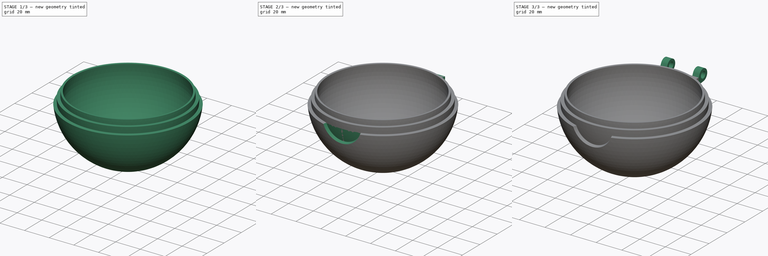
[diagram: build sequence overview — one tinted view per stage of 3, left to right]
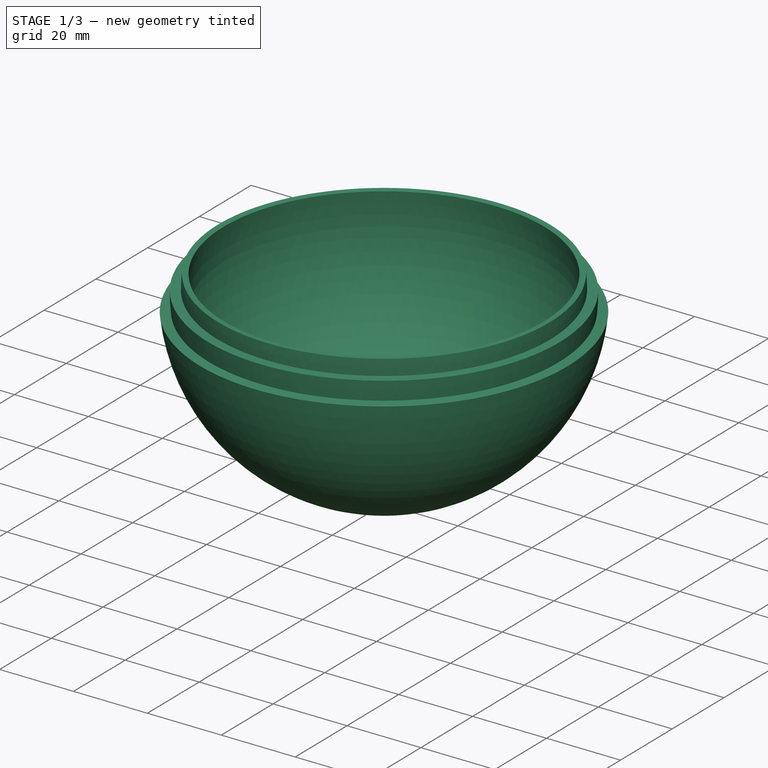
[diagram: stage 1 of 3 — iso view after this stage's code; geometry added in this stage tinted green]
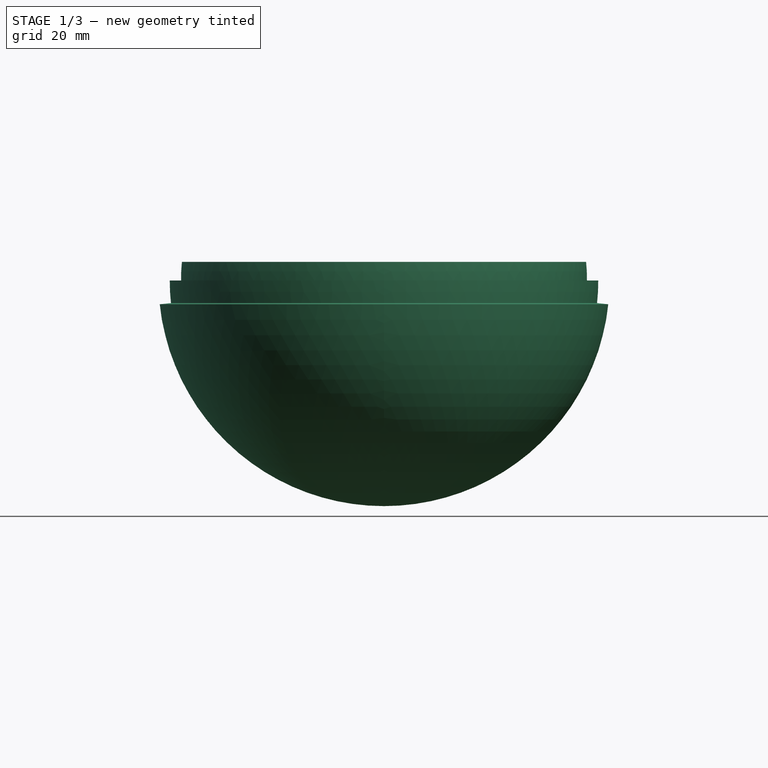
[diagram: stage 1 of 3 — front view after this stage's code; geometry added in this stage tinted green]
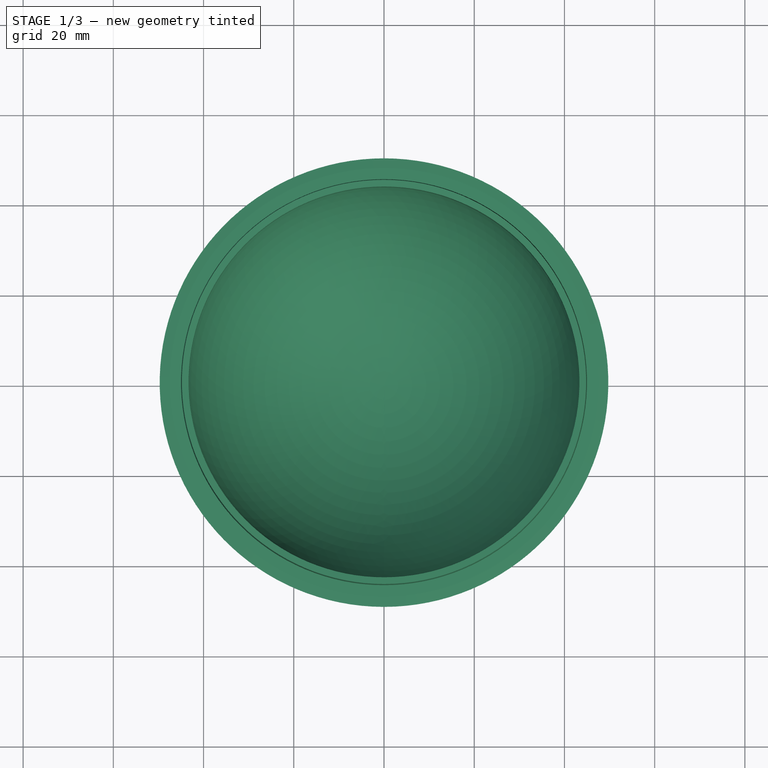
[diagram: stage 1 of 3 — top view after this stage's code; geometry added in this stage tinted green]
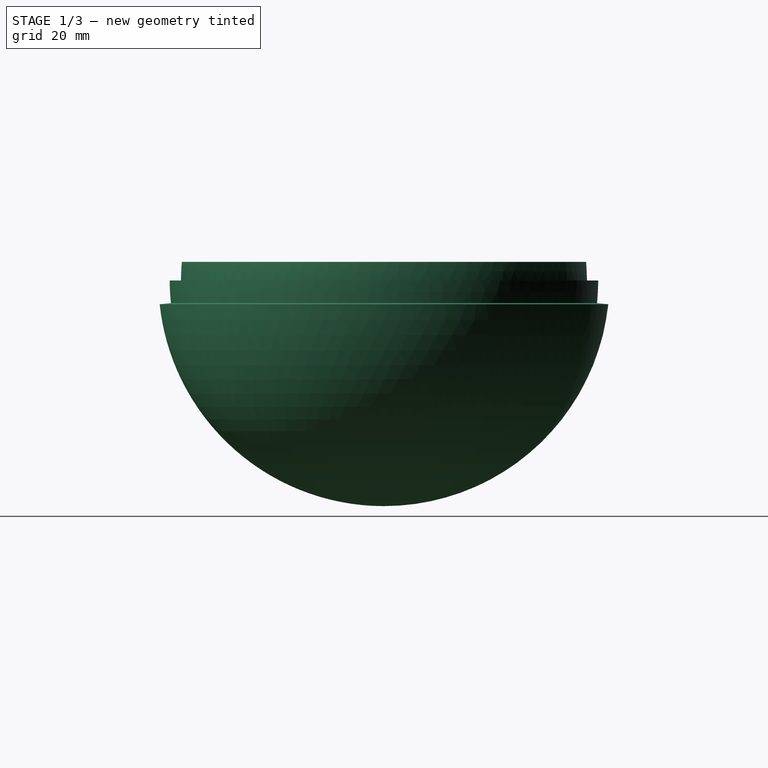
[diagram: stage 1 of 3 — right view after this stage's code; geometry added in this stage tinted green]
FCSTD DOCUMENT  (FreeCAD 0.20R29410 (Git))
Label: pokeball_botom
License: All rights reserved
LicenseURL: http://en.wikipedia.org/wiki/All_rights_reserved
objects: Sketcher::SketchObject×4, PartDesign::Groove×2, PartDesign::Pad×2, PartDesign::Revolution×1, PartDesign::Pocket×1, PartDesign::Body×1
note: 17 computed .brp shape members not serialized (recipe doc carries the construction recipe); baked Part::Feature solids carry a one-line shape summary decoded from their .brp

FEATURE [Sketcher::SketchObject] Sketch
  FullyConstrained = true
  MapMode = 5
  Placement = pos=(0,0,0) rot=(0.57735,0.57735,0.57735;2.0944rad)
  Support = -> [YZ_Plane]
  sketch-geometry (12):
    g0: ArcOfCircle CenterX=0 CenterY=0 CenterZ=0 NormalX=0 NormalY=0 NormalZ=1 AngleXU=0 Radius=50 StartAngle=3.2469 EndAngle=4.71239
    g1: ArcOfCircle CenterX=0 CenterY=0 CenterZ=0 NormalX=0 NormalY=0 NormalZ=1 AngleXU=0 Radius=47.5 StartAngle=3.14159 EndAngle=3.2469
    g2: ArcOfCircle CenterX=0 CenterY=0 CenterZ=0 NormalX=0 NormalY=0 NormalZ=1 AngleXU=0 Radius=45 StartAngle=3.04951 EndAngle=3.14159
    g3: ArcOfCircle CenterX=0 CenterY=0 CenterZ=0 NormalX=0 NormalY=0 NormalZ=1 AngleXU=0 Radius=43.5 StartAngle=3.04951 EndAngle=3.2469
    g4: LineSegment StartX=-47.5 StartY=5.5e-15 StartZ=0 EndX=-45 EndY=5.5e-15 EndZ=0
    g5: LineSegment StartX=0 StartY=0 StartZ=0 EndX=-47.2368 EndY=-4.99307 EndZ=0
    g6: LineSegment StartX=0 StartY=0 StartZ=0 EndX=-43.3157 EndY=4 EndZ=0
    g7: LineSegment StartX=-43.3157 StartY=4 StartZ=0 EndX=-44.8093 EndY=4.13793 EndZ=0
    g8: LineSegment StartX=-47.2368 StartY=-4.99307 StartZ=0 EndX=-49.723 EndY=-5.25586 EndZ=0
    g9: LineSegment StartX=-43.259 StartY=-4.5726 StartZ=0 EndX=-44.7507 EndY=-4.73028 EndZ=0
    g10: LineSegment StartX=-8.3e-15 StartY=-45 StartZ=0 EndX=-8.3e-15 EndY=-50 EndZ=0
    g11: ArcOfCircle CenterX=0 CenterY=0 CenterZ=0 NormalX=0 NormalY=0 NormalZ=1 AngleXU=0 Radius=45 StartAngle=3.2469 EndAngle=4.71239
  constraints (35):
    c: Coincident(g0,g-1)
    c: Coincident(g1,g0)
    c: Coincident(g2,g0)
    c: Coincident(g3,g0)
    c: Diameter(g0) = 100
    c: Diameter(g1) = 95
    c: Diameter(g2) = 90
    c: Diameter(g3) = 87
    c: Horizontal(g4)
    c: PointOnObject(g4,g-1)
    c: Coincident(g5,g0)
    c: Coincident(g6,g0)
    c: Distance(g5,g4) = 5
    c: DistanceY(g-1,g6) = 4
    c: Coincident(g7,g6)
    c: Parallel(g7,g6)
    c: Coincident(g8,g5)
    c: Parallel(g8,g5)
    c: PointOnObject(g9,g2)
    c: Parallel(g9,g5)
    c: PointOnObject(g9,g5)
    c: Coincident(g3,g9)
    c: Coincident(g3,g6)
    c: Coincident(g1,g5)
    c: Coincident(g1,g4)
    c: Vertical(g10)
    c: PointOnObject(g10,g-2)
    c: Coincident(g11,g10)
    c: Coincident(g2,g7)
    c: Coincident(g0,g10)
    c: Coincident(g0,g8)
    c: Equal(g2,g11)
    c: Coincident(g2,g4)
    c: PointOnObject(g11,g5)
    c: Coincident(g2,g11)
FEATURE [PartDesign::Revolution] Revolution
  Angle = 360
  Axis = (-2e-16,3e-16,1)
  Base = (0,0,0)
  Placement = pos=(0,0,0) rot=(0.57735,0.57735,0.57735;2.0944rad)
  Profile = -> Sketch
  ReferenceAxis = -> Sketch [V_Axis]
  Refine = true
FEATURE [Sketcher::SketchObject] Sketch001
  ExternalGeometry = -> [Revolution]
  FullyConstrained = true
  MapMode = 5
  Placement = pos=(0,0,0) rot=(0.57735,0.57735,0.57735;2.0944rad)
  Support = -> [YZ_Plane]
  sketch-geometry (5):
    g0: ArcOfCircle CenterX=0 CenterY=0 CenterZ=0 NormalX=0 NormalY=0 NormalZ=1 AngleXU=0 Radius=47.5 StartAngle=3.14159 EndAngle=3.45871
    g1: LineSegment StartX=0 StartY=0 StartZ=0 EndX=-45.1316 EndY=-14.8118 EndZ=0
    g2: LineSegment StartX=-45.1316 StartY=-14.8118 StartZ=0 EndX=-47.5069 EndY=-15.5914 EndZ=0
    g3: ArcOfCircle CenterX=0 CenterY=0 CenterZ=0 NormalX=0 NormalY=0 NormalZ=1 AngleXU=0 Radius=50 StartAngle=3.14159 EndAngle=3.45871
    g4: LineSegment StartX=-47.5 StartY=5.8e-15 StartZ=0 EndX=-50 EndY=6.1e-15 EndZ=0
  constraints (13):
    c: Coincident(g0,g-3)
    c: Distance(g0,g0) = 15
    c: Coincident(g1,g0)
    c: Coincident(g1,g0)
    c: Coincident(g2,g0)
    c: Parallel(g2,g1)
    c: Coincident(g3,g2)
    c: PointOnObject(g3,g-1)
    c: Coincident(g3,g0)
    c: Coincident(g4,g0)
    c: Coincident(g4,g3)
    c: DistanceX(g3,g0) = 50
    c: Coincident(g0,g-3)
FEATURE [PartDesign::Groove] Groove
  Angle = 0.01
  Axis = (-2e-16,3e-16,1)
  Base = (0,0,0)
  BaseFeature = -> Revolution
  Midplane = true
  Placement = pos=(0,0,0) rot=(0.57735,0.57735,0.57735;2.0944rad)
  Profile = -> Sketch001
  ReferenceAxis = -> Sketch001 [V_Axis]
  Refine = true
  Reversed = true
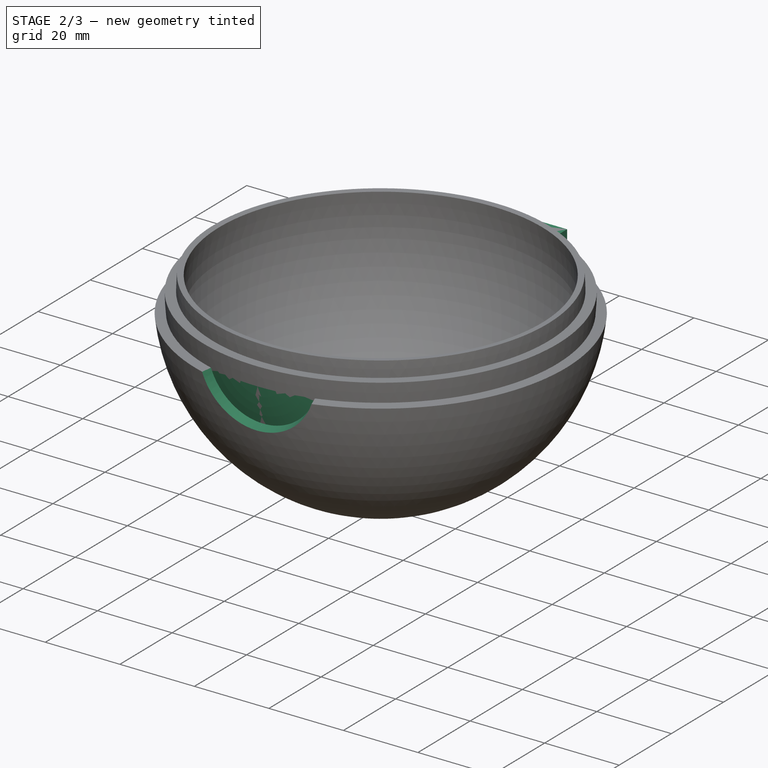
[diagram: stage 2 of 3 — iso view after this stage's code; geometry added in this stage tinted green]
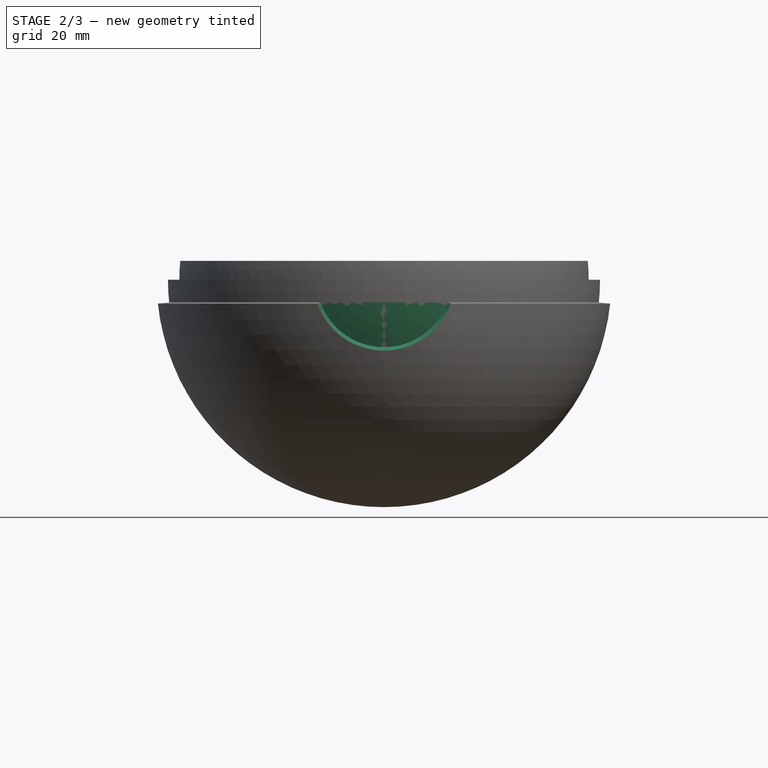
[diagram: stage 2 of 3 — front view after this stage's code; geometry added in this stage tinted green]
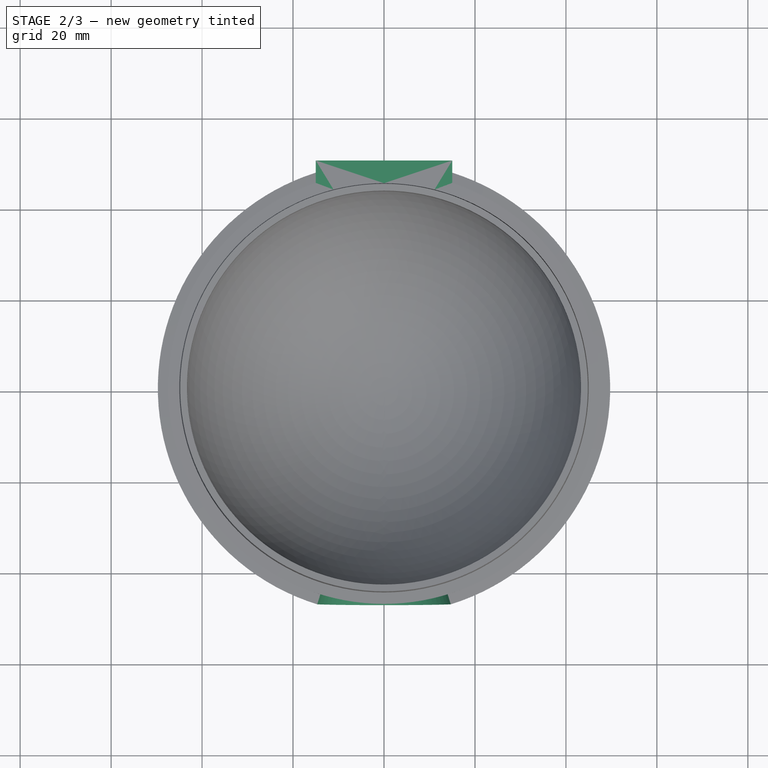
[diagram: stage 2 of 3 — top view after this stage's code; geometry added in this stage tinted green]
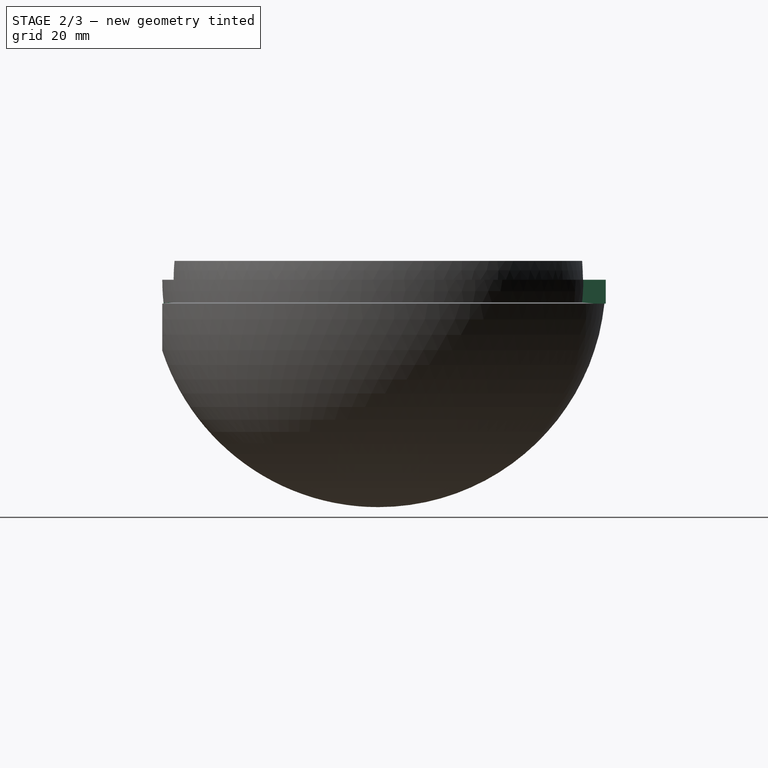
[diagram: stage 2 of 3 — right view after this stage's code; geometry added in this stage tinted green]
FEATURE [PartDesign::Groove] Groove001
  Angle = 360
  Axis = (1e-16,1,-1e-16)
  Base = (0,0,0)
  BaseFeature = -> Groove
  Placement = pos=(0,0,0) rot=(0.57735,0.57735,0.57735;2.0944rad)
  Profile = -> Sketch001
  ReferenceAxis = -> Y_Axis
  Refine = true
FEATURE [Sketcher::SketchObject] Sketch002
  ExternalGeometry = -> [Groove001]
  FullyConstrained = true
  MapMode = 5
  Support = -> [XY_Plane]
  sketch-geometry (4):
    g0: LineSegment StartX=-15 StartY=50 StartZ=0 EndX=15 EndY=50 EndZ=0
    g1: LineSegment StartX=15 StartY=50 StartZ=0 EndX=15 EndY=44.41 EndZ=0
    g2: LineSegment StartX=-15 StartY=50 StartZ=0 EndX=-15 EndY=44.41 EndZ=0
    g3: ArcOfCircle CenterX=7.5e-15 CenterY=0 CenterZ=0 NormalX=0 NormalY=0 NormalZ=1 AngleXU=0 Radius=46.8748 StartAngle=1.24507 EndAngle=1.89653
  constraints (11):
    c: Coincident(g1,g0)
    c: Vertical(g1)
    c: Coincident(g2,g0)
    c: Symmetric(g0,g0,g-2)
    c: DistanceY(g-3,g0) = 50
    c: DistanceX(g0,g-3) = 15
    c: Coincident(g3,g1)
    c: Coincident(g3,g2)
    c: DistanceY(g1,g0) = 5.59
    c: Symmetric(g2,g1,g-2)
    c: Coincident(g3,g-3)
FEATURE [PartDesign::Pad] Pad
  BaseFeature = -> Groove001
  Direction = (0,0,1)
  Length = 5.27
  Length2 = 10
  Placement = pos=(0,0,0) rot=(0.57735,0.57735,0.57735;2.0944rad)
  Profile = -> Sketch002
  ReferenceAxis = -> Sketch002 [N_Axis]
  Refine = true
  Reversed = true
  Type = 0
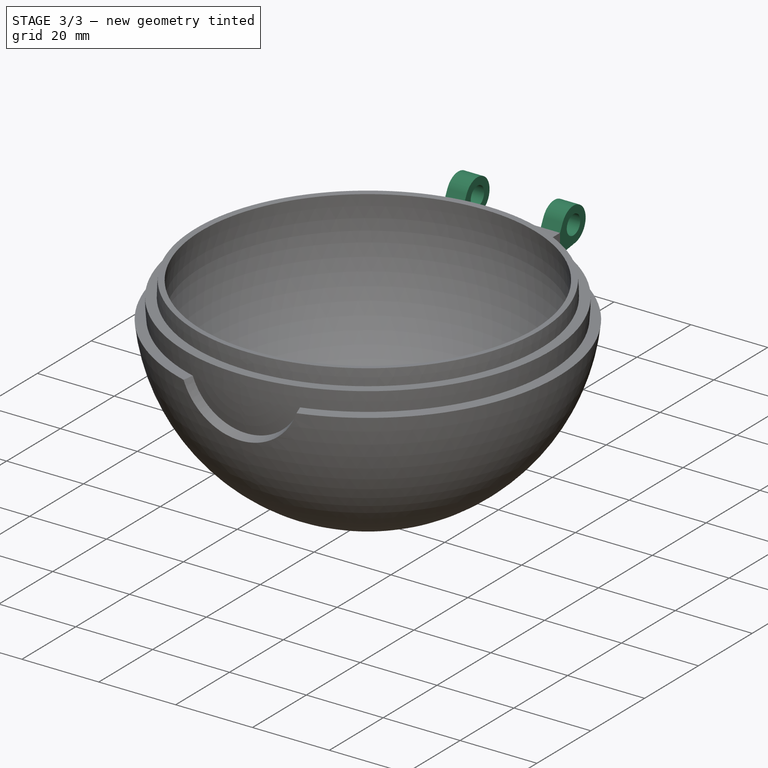
[diagram: stage 3 of 3 — iso view after this stage's code; geometry added in this stage tinted green]
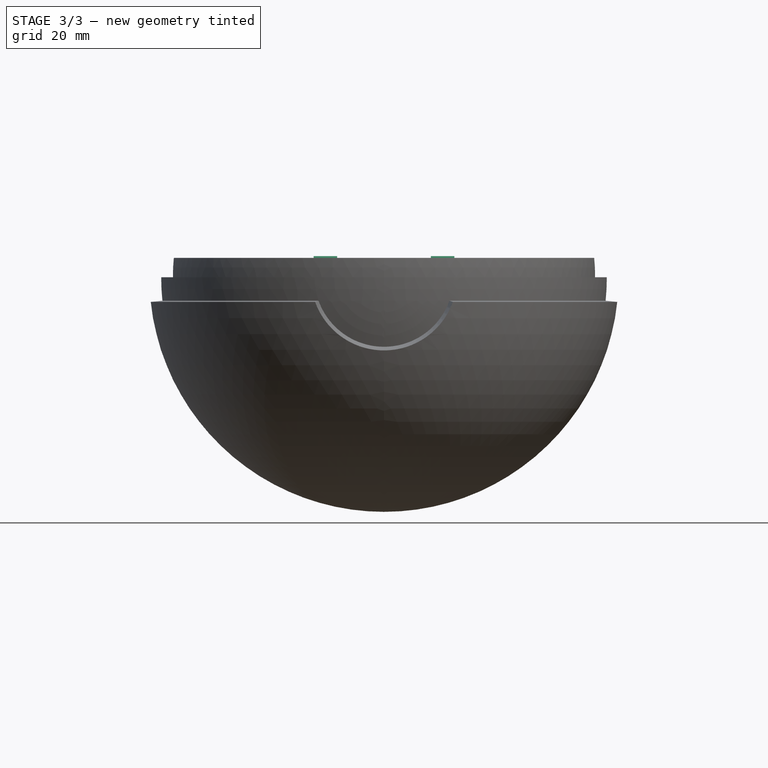
[diagram: stage 3 of 3 — front view after this stage's code; geometry added in this stage tinted green]
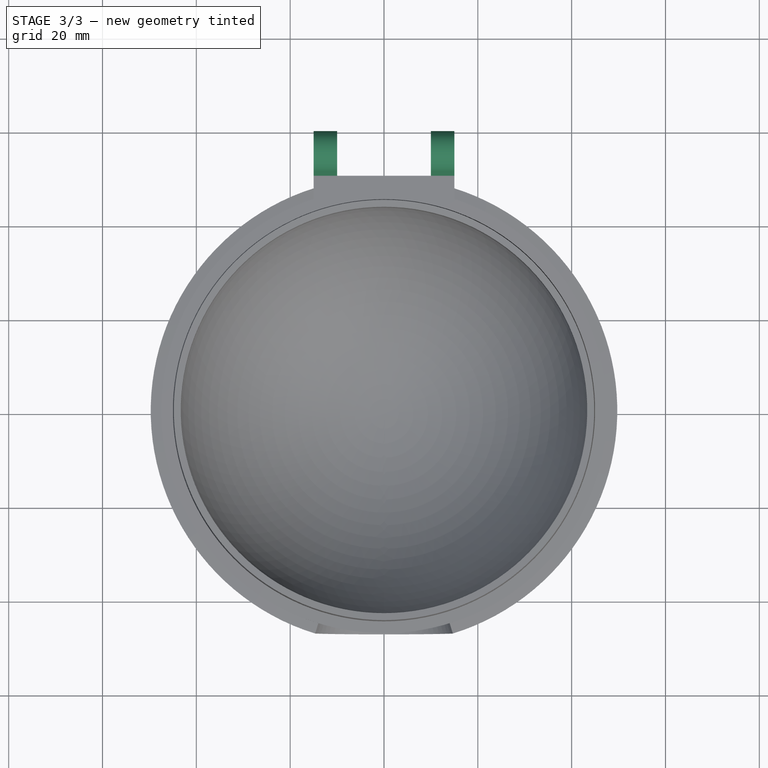
[diagram: stage 3 of 3 — top view after this stage's code; geometry added in this stage tinted green]
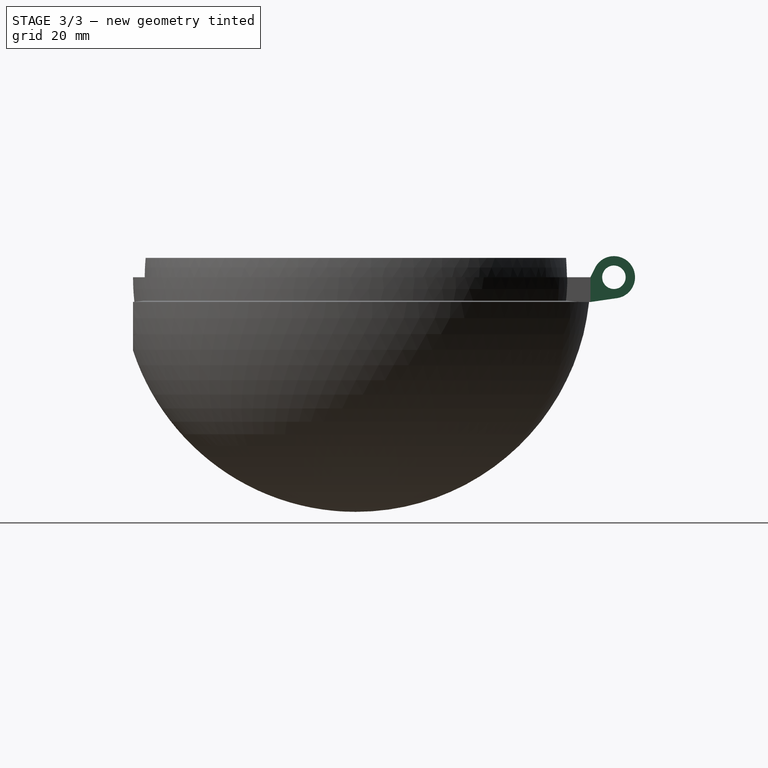
[diagram: stage 3 of 3 — right view after this stage's code; geometry added in this stage tinted green]
FEATURE [Sketcher::SketchObject] Sketch003
  ExternalGeometry = -> [Pad]
  FullyConstrained = true
  MapMode = 5
  Placement = pos=(0,0,0) rot=(0.57735,0.57735,0.57735;2.0944rad)
  Support = -> [YZ_Plane]
  sketch-geometry (6):
    g0: Circle CenterX=55 CenterY=0 CenterZ=0 NormalX=0 NormalY=0 NormalZ=1 AngleXU=0 Radius=2.5
    g1: ArcOfCircle CenterX=55 CenterY=0 CenterZ=0 NormalX=0 NormalY=0 NormalZ=1 AngleXU=0 Radius=4.5 StartAngle=4.85603 EndAngle=8.97375
    g2: LineSegment StartX=50.95 StartY=1.9615 StartZ=0 EndX=50 EndY=2e-16 EndZ=0
    g3: LineSegment StartX=55.6442 StartY=-4.45366 StartZ=0 EndX=50 EndY=-5.27 EndZ=0
    g4: LineSegment StartX=57.5 StartY=0 StartZ=0 EndX=59.5 EndY=0 EndZ=0
    g5: LineSegment StartX=50 StartY=2e-16 StartZ=0 EndX=50 EndY=-5.27 EndZ=0
  constraints (15):
    c: PointOnObject(g0,g-1)
    c: Diameter(g0) = 5
    c: DistanceX(g-3,g0) = 5
    c: Coincident(g1,g0)
    c: Coincident(g2,g-3)
    c: Coincident(g3,g-3)
    c: Tangent(g3,g1) = 1.5708
    c: Tangent(g2,g1) = -1.5708
    c: PointOnObject(g4,g0)
    c: PointOnObject(g4,g1)
    c: Horizontal(g4)
    c: PointOnObject(g4,g-1)
    c: DistanceX(g4,g4) = 2
    c: Coincident(g5,g2)
    c: Coincident(g5,g3)
FEATURE [PartDesign::Pad] Pad001
  BaseFeature = -> Pad
  Direction = (1,-2e-16,3e-16)
  Length = 30
  Length2 = 10
  Midplane = true
  Placement = pos=(0,0,0) rot=(0.57735,0.57735,0.57735;2.0944rad)
  Profile = -> Sketch003
  ReferenceAxis = -> Sketch003 [N_Axis]
  Refine = true
  Type = 0
FEATURE [PartDesign::Pocket] Pocket
  BaseFeature = -> Pad001
  Direction = (-1,2e-16,-3e-16)
  Length = 20
  Length2 = 5
  Midplane = true
  Placement = pos=(0,0,0) rot=(0.57735,0.57735,0.57735;2.0944rad)
  Profile = -> Sketch003
  ReferenceAxis = -> Sketch003 [N_Axis]
  Refine = true
  Type = 0
FEATURE [PartDesign::Body] Body
  Group = -> [Sketch,Revolution,Sketch001,Groove,Groove001,Sketch002,Pad,Sketch003,Pad001,Pocket]
  Origin = -> Origin
  Tip = -> Pocket
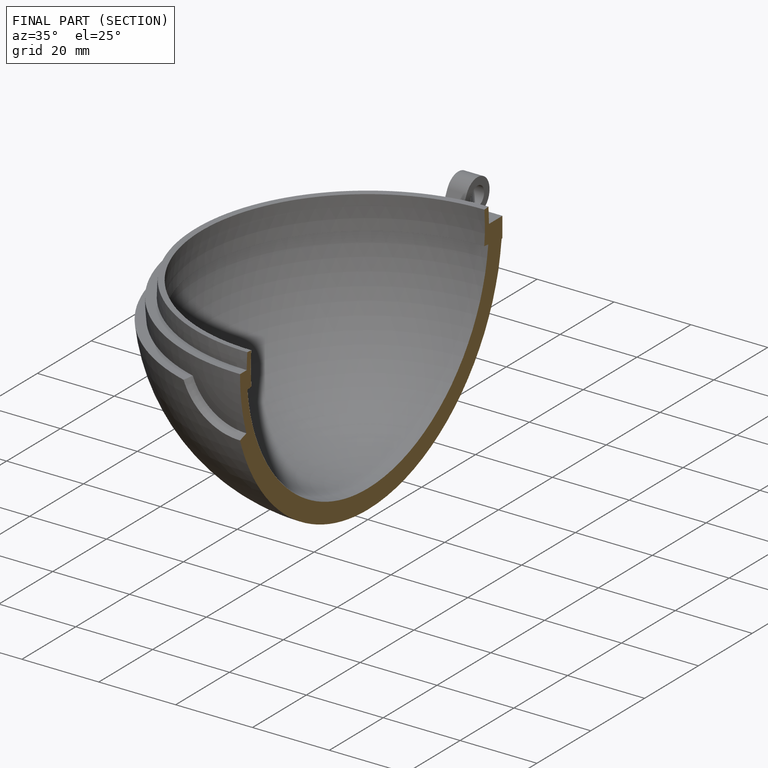
[diagram: finished part — half-section view (interior)]
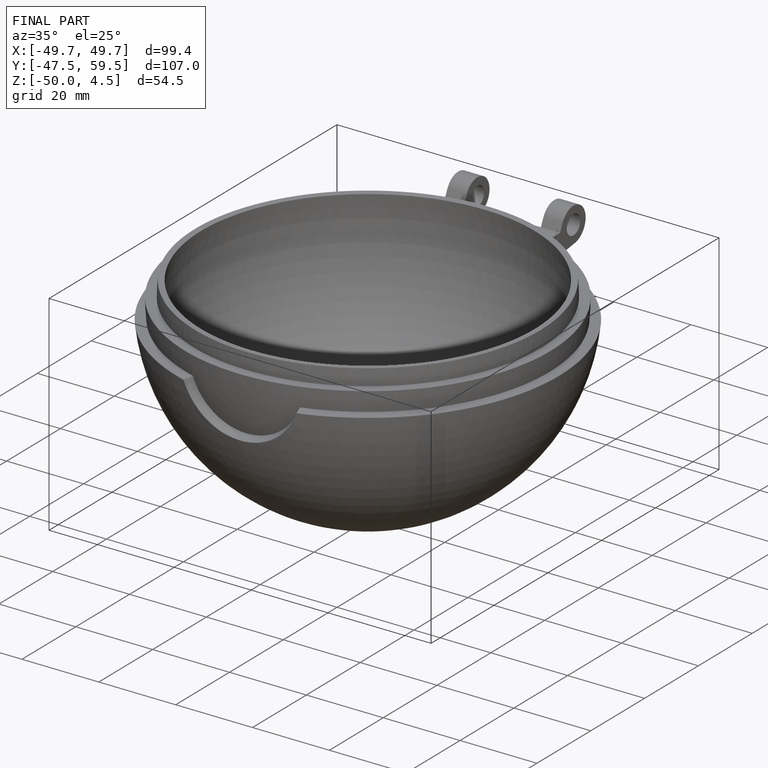
[diagram: finished part — iso view with bounding-box wireframe]
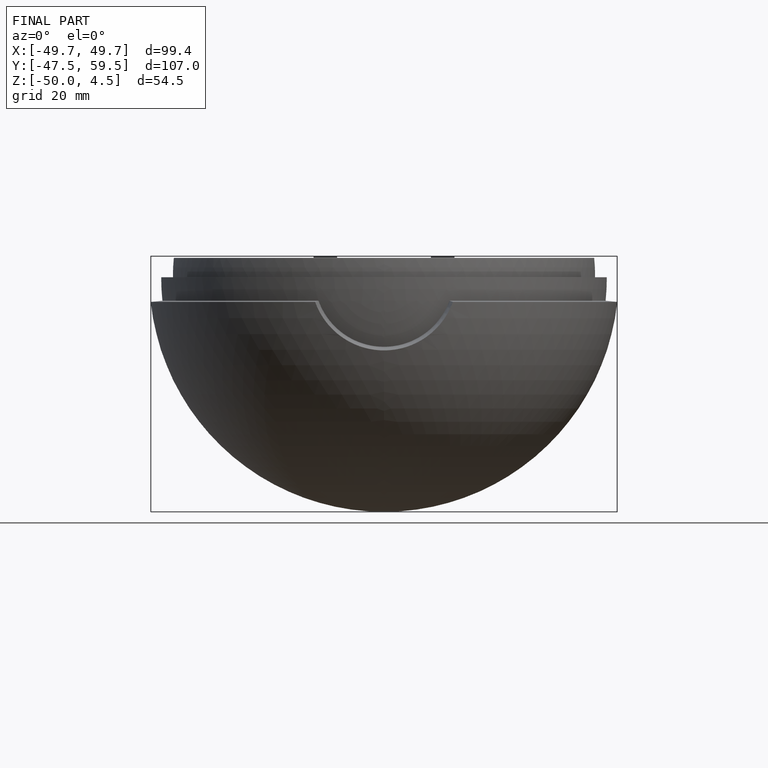
[diagram: finished part — front view with bounding-box wireframe]
